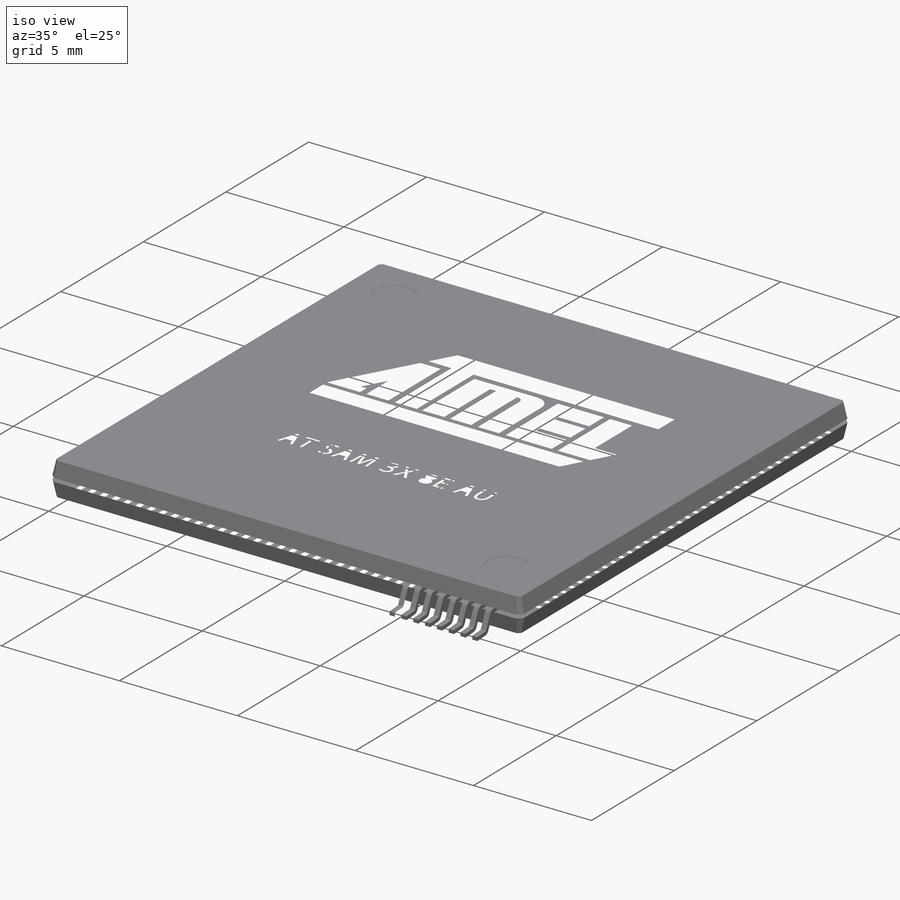
[diagram: iso view]
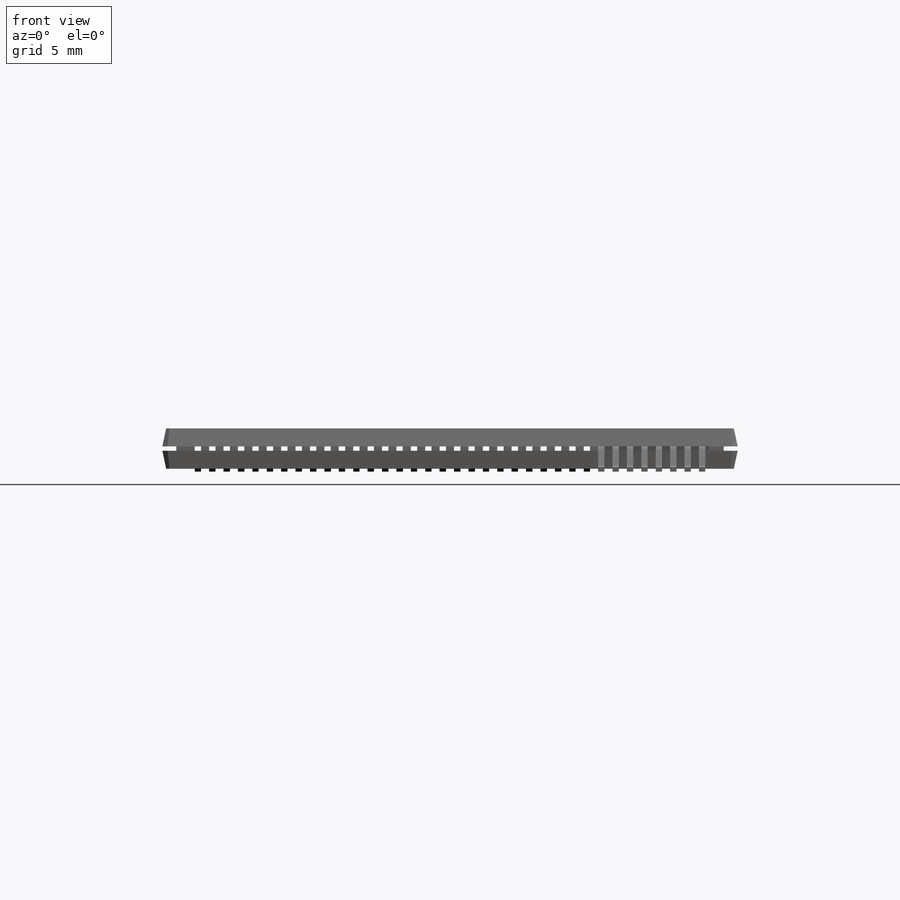
[diagram: front view]
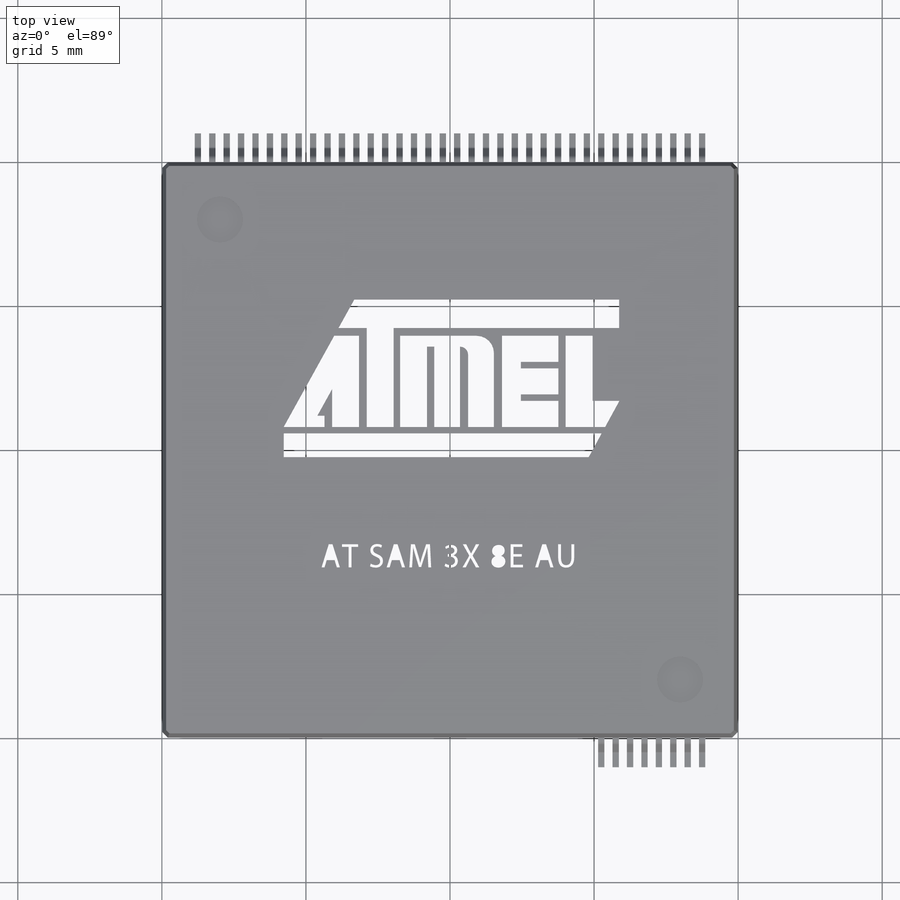
[diagram: top view]
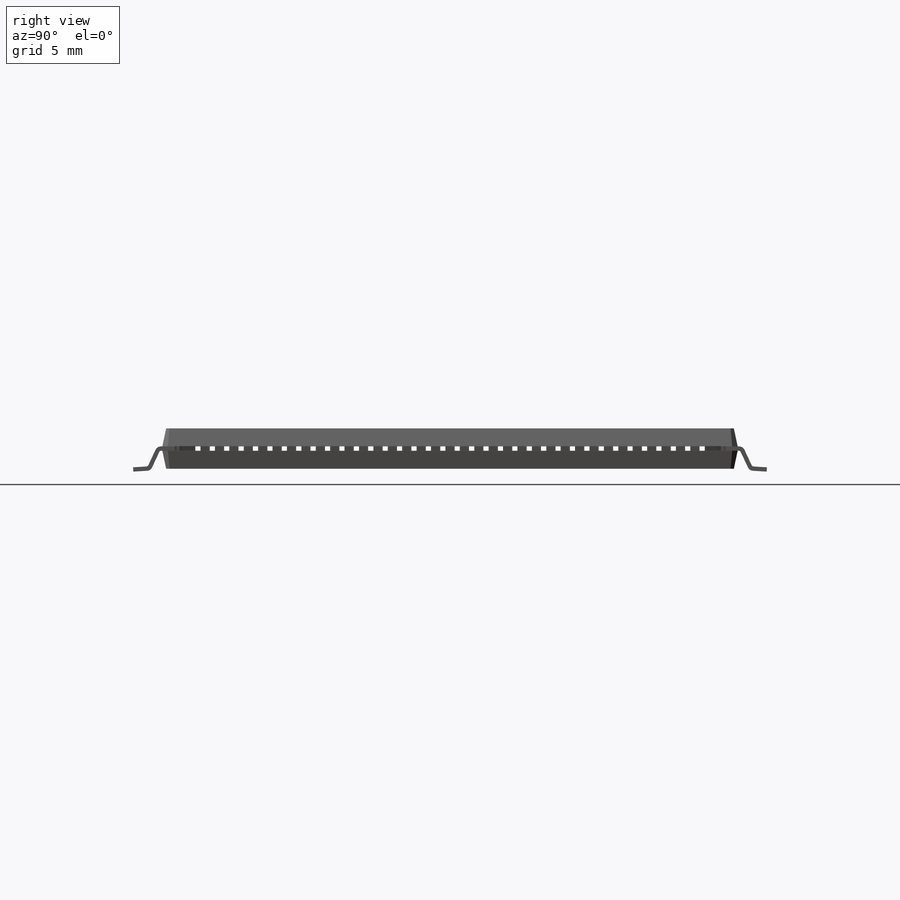
[diagram: right view]
SOLIDWORKS PART (.sldprt)
format: sldprt  version: not decoded by parser v0  size: 6,553,600 bytes
history: native  units: mm
features: sketch x7, extrude x5, cut_extrude x2, plane x2, pattern_linear x2, mirror x2, material x1 (+11 scaffold rows collapsed)
feature tree (32):
  scaffold x11  (default folders/planes/origin — collapsed)
  material  "Material <not specified>"
  sketch  "Sketch1"  dims[D1=20.0mm D2=20.0mm D3=10.0mm D4=10.0mm]
  extrude  "Extrude1"  Depth=1.4mm
  sketch  "Sketch2"  dims[D2=0.5mm D3=0.5mm D4=0.5mm D5=0.5mm D1=0.0mm]
  cut_extrude  "Cut-Extrude1"  Depth=0.15mm
  sketch  "Sketch3"  dims[D2=1.6mm D1=2.0mm D3=2.0mm]
  cut_extrude  "Cut-Extrude2"  Depth=0.01mm
  plane  "Plane1"  Offset=8.75mm
  sketch  "Sketch4"  dims[c1.D6=0.08mm c1.D7=0.2mm c1.D1=7.0mm c1.D2=~0.739264mm c2.D2=3.5deg c2.D3=0.1mm c2.D4=0.15mm c3.D4=25.0deg c3.D5=0.6mm c3.D6=0.15mm c3.D1=11.0mm]
  extrude  "Extrude2"  Depth=0.22mm
  pattern_linear  "LPattern1"  Count1=36 Count2=1 Spacing1=0.5mm Spacing2=50mm
  mirror  "Mirror1"
  plane  "Plane2"  Offset=8.75mm
  sketch  "Sketch5"  dims[c1.D3=0.08mm c1.D4=0.3mm c1.D1=3.5deg c1.D2=25.0deg c1.D5=0.1mm c1.D6=7.0mm c1.D7=0.6mm c2.D6=11.0mm]
  extrude  "Extrude3"  Depth=0.18mm
  pattern_linear  "LPattern2"  Count1=36 Count2=1 Spacing1=0.5mm Spacing2=50mm
  mirror  "Mirror2"
  sketch  "Sketch6"
  extrude  "Extrude4"  Depth=0.001mm
  sketch  "Sketch7"
  extrude  "Extrude5"  Depth=0.001mm
decode coverage: 14 of 18 modeling features carry decoded parameters
note: ~ marks probable driven/reference dimensions
note: suppression state not decoded; provenance and decode notes live in map.json
